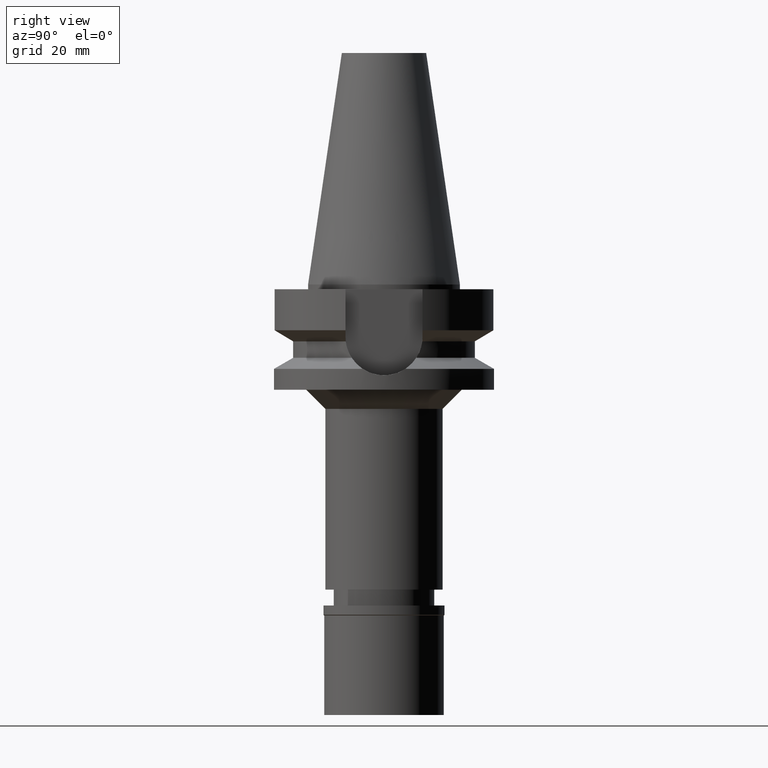
[diagram: clean part render]
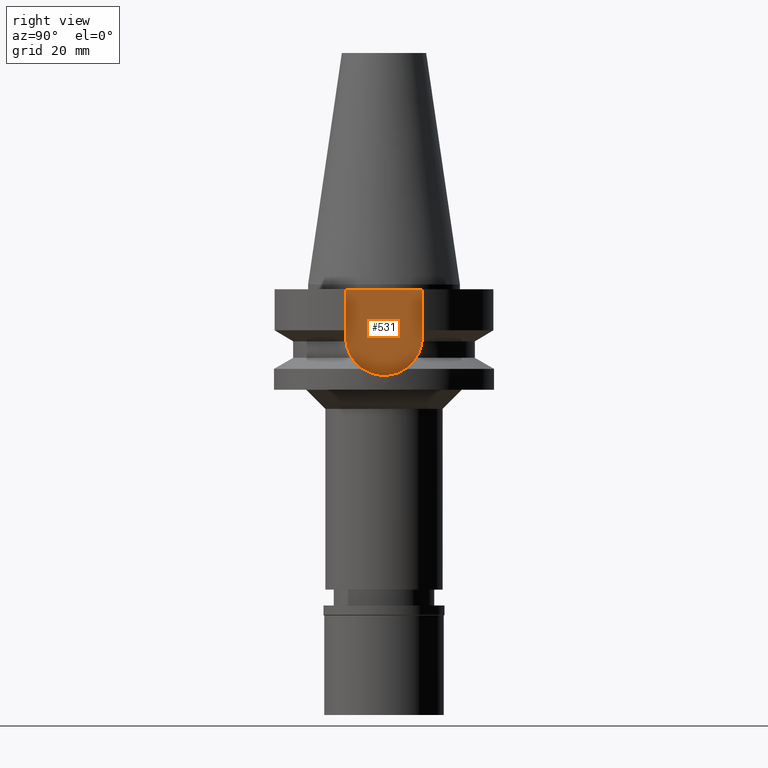
[diagram: same view with one face highlighted and labeled with its STEP entity id]
A machine part, right view. The second image highlights one B-rep face of the part: STEP entity #531.
In plain terms, the highlighted planar face has unit normal (1, 0, 0).
Its self-contained STEP definition (entity closure, byte-faithful):
#17 = LINE ( 'NONE', #977, #180 ) ;
#85 = EDGE_CURVE ( 'NONE', #3048, #2703, #1047, .T. ) ;
#180 = VECTOR ( 'NONE', #2414, 1000.000000000000000 ) ;
#287 = AXIS2_PLACEMENT_3D ( 'NONE', #1218, #2159, #938 ) ;
#531 = ADVANCED_FACE ( 'NONE', ( #1701 ), #2093, .T. ) ;
#568 = DIRECTION ( 'NONE',  ( -1.000000000000000000, 0.0000000000000000000, 0.0000000000000000000 ) ) ;
#763 = VECTOR ( 'NONE', #1290, 1000.000000000000000 ) ;
#812 = EDGE_CURVE ( 'NONE', #1133, #1712, #17, .T. ) ;
#828 = EDGE_CURVE ( 'NONE', #1133, #3048, #1239, .T. ) ;
#871 = CARTESIAN_POINT ( 'NONE',  ( 16.29999999999999716, 8.050000000000000711, -1.000000000000000000 ) ) ;
#938 = DIRECTION ( 'NONE',  ( 0.0000000000000000000, 1.000000000000000000, 0.0000000000000000000 ) ) ;
#962 = CARTESIAN_POINT ( 'NONE',  ( 16.29999999999999716, 8.050000000000000711, -1.000000000000000000 ) ) ;
#977 = CARTESIAN_POINT ( 'NONE',  ( 16.29999999999999716, 8.050000000000000711, -1.000000000000000000 ) ) ;
#1039 = CARTESIAN_POINT ( 'NONE',  ( 16.29999999999999716, 0.0000000000000000000, -10.94999999999999929 ) ) ;
#1047 = CIRCLE ( 'NONE', #1782, 8.050000000000000711 ) ;
#1133 = VERTEX_POINT ( 'NONE', #871 ) ;
#1218 = CARTESIAN_POINT ( 'NONE',  ( 16.29999999999999716, 0.0000000000000000000, 0.0000000000000000000 ) ) ;
#1239 = LINE ( 'NONE', #962, #1919 ) ;
#1290 = DIRECTION ( 'NONE',  ( 0.0000000000000000000, 0.0000000000000000000, 1.000000000000000000 ) ) ;
#1669 = CARTESIAN_POINT ( 'NONE',  ( 16.29999999999999716, 8.050000000000000711, -10.94999999999999929 ) ) ;
#1701 = FACE_OUTER_BOUND ( 'NONE', #2952, .T. ) ;
#1712 = VERTEX_POINT ( 'NONE', #1936 ) ;
#1782 = AXIS2_PLACEMENT_3D ( 'NONE', #1039, #568, #2473 ) ;
#1919 = VECTOR ( 'NONE', #2581, 1000.000000000000000 ) ;
#1936 = CARTESIAN_POINT ( 'NONE',  ( 16.29999999999999716, -8.050000000000000711, -1.000000000000000000 ) ) ;
#1950 = CARTESIAN_POINT ( 'NONE',  ( 16.29999999999999716, -8.050000000000000711, -10.94999999999999929 ) ) ;
#2093 = PLANE ( 'NONE',  #287 ) ;
#2159 = DIRECTION ( 'NONE',  ( 1.000000000000000000, 0.0000000000000000000, 0.0000000000000000000 ) ) ;
#2179 = ORIENTED_EDGE ( 'NONE', *, *, #812, .T. ) ;
#2191 = ORIENTED_EDGE ( 'NONE', *, *, #85, .F. ) ;
#2414 = DIRECTION ( 'NONE',  ( 0.0000000000000000000, -1.000000000000000000, 0.0000000000000000000 ) ) ;
#2473 = DIRECTION ( 'NONE',  ( 0.0000000000000000000, 0.0000000000000000000, -1.000000000000000000 ) ) ;
#2581 = DIRECTION ( 'NONE',  ( 0.0000000000000000000, 0.0000000000000000000, -1.000000000000000000 ) ) ;
#2703 = VERTEX_POINT ( 'NONE', #1950 ) ;
#2861 = ORIENTED_EDGE ( 'NONE', *, *, #2878, .F. ) ;
#2878 = EDGE_CURVE ( 'NONE', #2703, #1712, #2961, .T. ) ;
#2921 = ORIENTED_EDGE ( 'NONE', *, *, #828, .F. ) ;
#2952 = EDGE_LOOP ( 'NONE', ( #2861, #2191, #2921, #2179 ) ) ;
#2961 = LINE ( 'NONE', #2975, #763 ) ;
#2975 = CARTESIAN_POINT ( 'NONE',  ( 16.29999999999999716, -8.050000000000000711, -10.94999999999999929 ) ) ;
#3048 = VERTEX_POINT ( 'NONE', #1669 ) ;